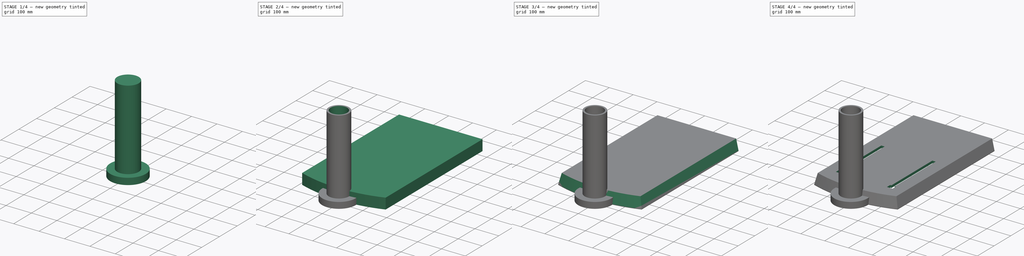
[diagram: build sequence overview — one tinted view per stage of 4, left to right]
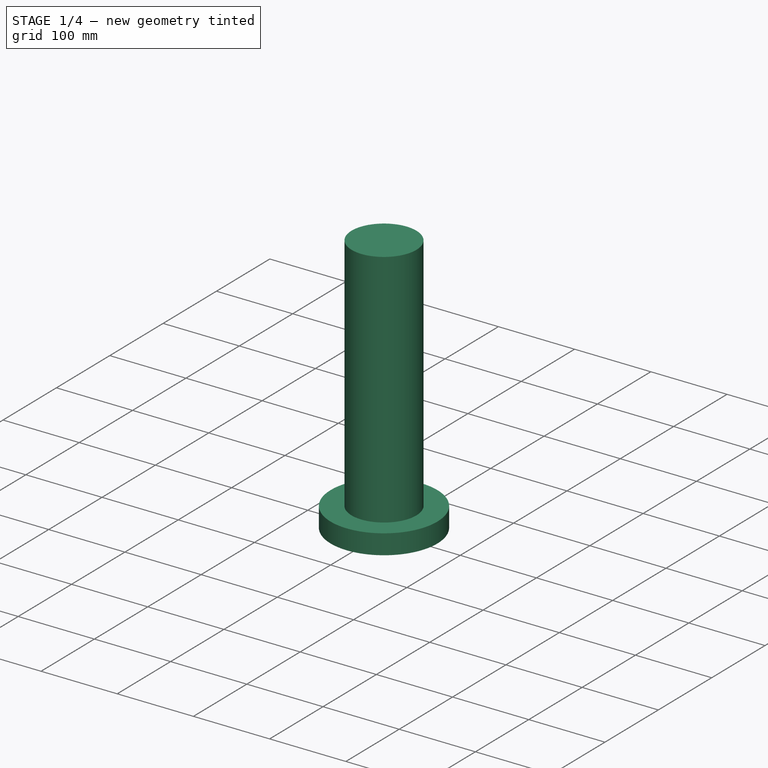
[diagram: stage 1 of 4 — iso view after this stage's code; geometry added in this stage tinted green]
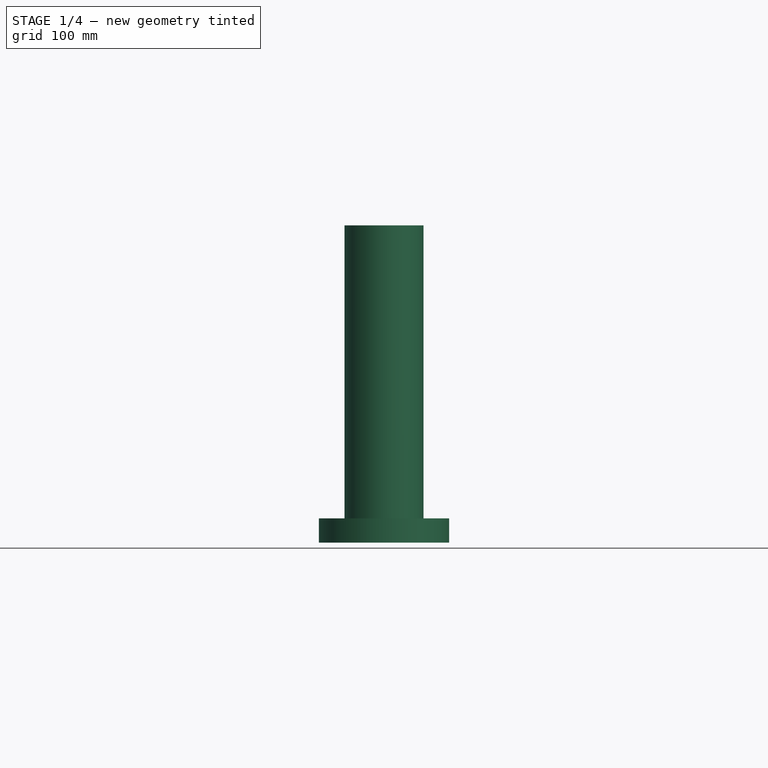
[diagram: stage 1 of 4 — front view after this stage's code; geometry added in this stage tinted green]
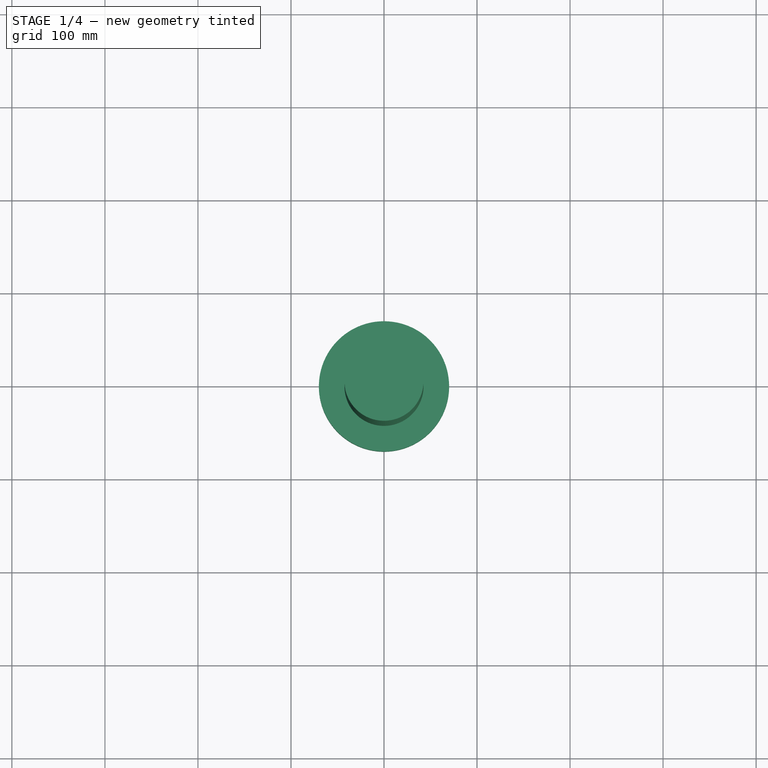
[diagram: stage 1 of 4 — top view after this stage's code; geometry added in this stage tinted green]
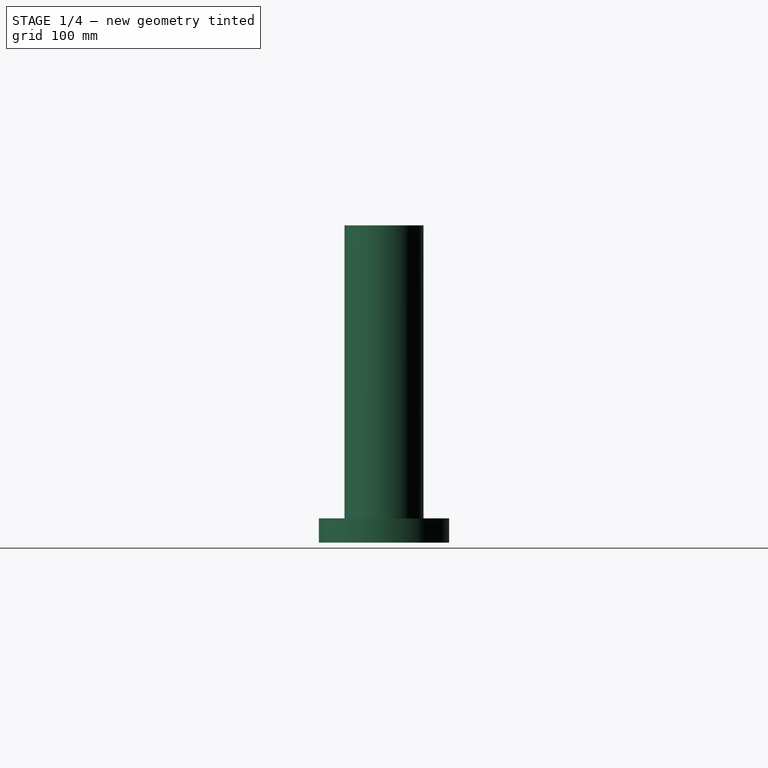
[diagram: stage 1 of 4 — right view after this stage's code; geometry added in this stage tinted green]
FCSTD DOCUMENT  (FreeCAD 0.22R35466 (Git))
Label: drill_press
License: All rights reserved
LicenseURL: http://en.wikipedia.org/wiki/All_rights_reserved
objects: Sketcher::SketchObject×6, PartDesign::Pad×3, PartDesign::Pocket×3, PartDesign::Chamfer×2, PartDesign::Body×2, Spreadsheet::Sheet×1, PartDesign::Mirrored×1, App::Part×1
note: 25 computed .brp shape members not serialized (recipe doc carries the construction recipe); baked Part::Feature solids carry a one-line shape summary decoded from their .brp

FEATURE [PartDesign::Body] Body  label="base_plate"
  Group = -> [Sketch,Pad,Chamfer,Sketch001,Pocket,Chamfer001,Sketch002,Pocket001,Mirrored]
  Origin = -> Origin
  Tip = -> Mirrored
FEATURE [Sketcher::SketchObject] Sketch003
  FullyConstrained = true
  MapMode = 5
  Support = -> [XY_Plane002]
  sketch-geometry (1):
    g0: Circle CenterX=0 CenterY=0 CenterZ=0 NormalX=0 NormalY=0 NormalZ=1 AngleXU=0 Radius=70
  constraints (2):
    c: Coincident(g0,g-1)
    c: Diameter(g0) = 140
FEATURE [PartDesign::Pad] Pad001
  Direction = (0,0,1)
  Length = 26
  Length2 = 10
  Profile = -> Sketch003
  ReferenceAxis = -> Sketch003 [N_Axis]
  Type = 0
FEATURE [Sketcher::SketchObject] Sketch004
  FullyConstrained = true
  MapMode = 5
  Placement = pos=(0,0,26) rot=(0,0,1;0rad)
  Support = -> [Pad001]
  sketch-geometry (1):
    g0: Circle CenterX=0 CenterY=0 CenterZ=0 NormalX=0 NormalY=0 NormalZ=1 AngleXU=0 Radius=42.5
  constraints (2):
    c: Coincident(g0,g-1)
    c: Diameter(g0) = 85
FEATURE [PartDesign::Pad] Pad002
  BaseFeature = -> Pad001
  Direction = (0,0,1)
  Length = 315
  Length2 = 10
  Profile = -> Sketch004
  ReferenceAxis = -> Sketch004 [N_Axis]
  Type = 0
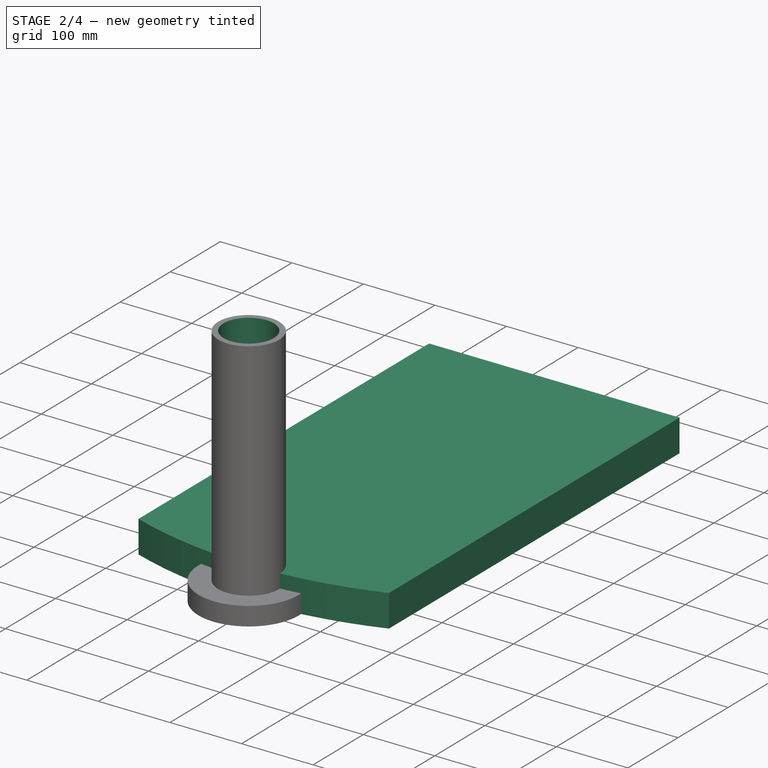
[diagram: stage 2 of 4 — iso view after this stage's code; geometry added in this stage tinted green]
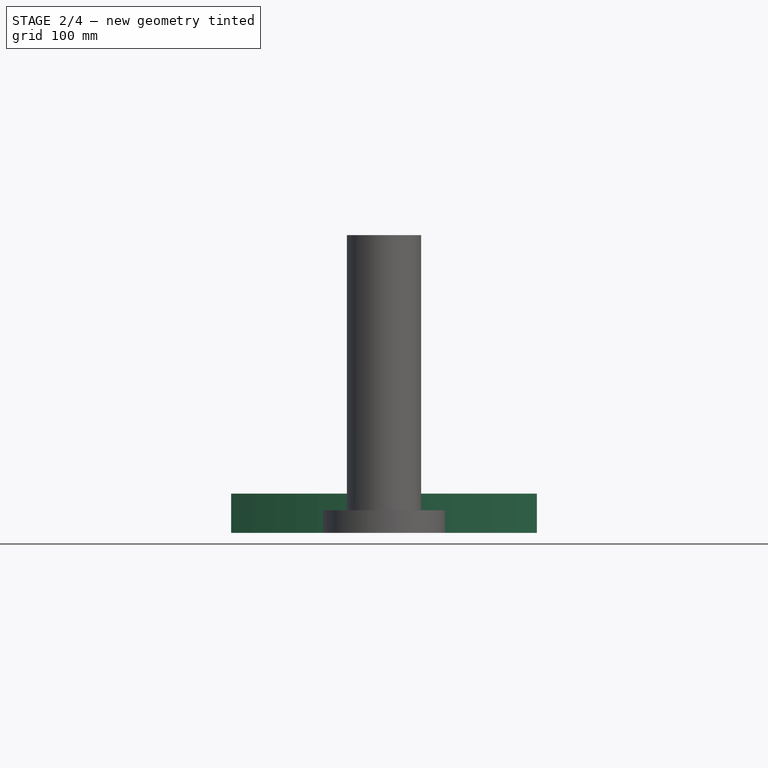
[diagram: stage 2 of 4 — front view after this stage's code; geometry added in this stage tinted green]
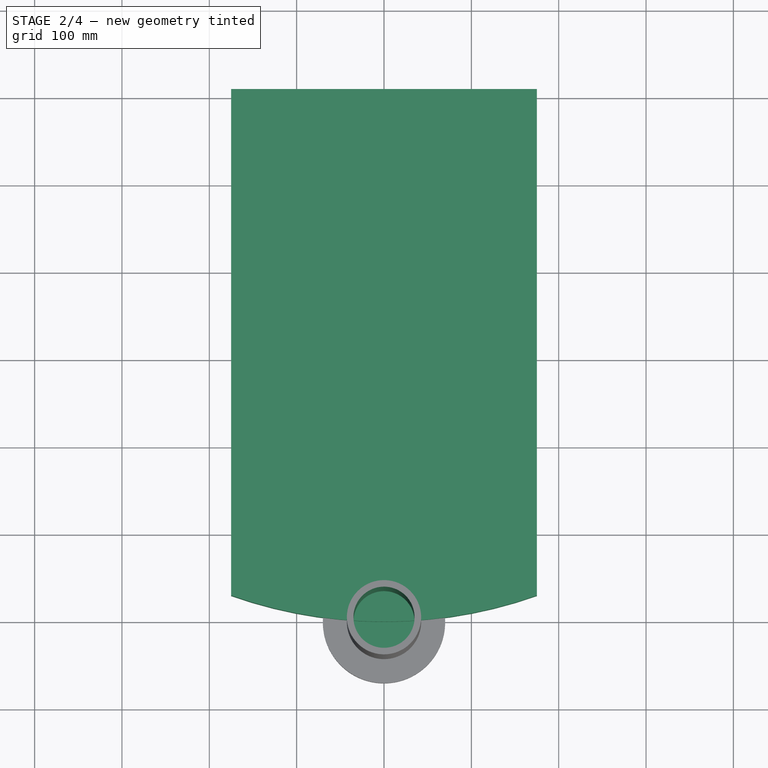
[diagram: stage 2 of 4 — top view after this stage's code; geometry added in this stage tinted green]
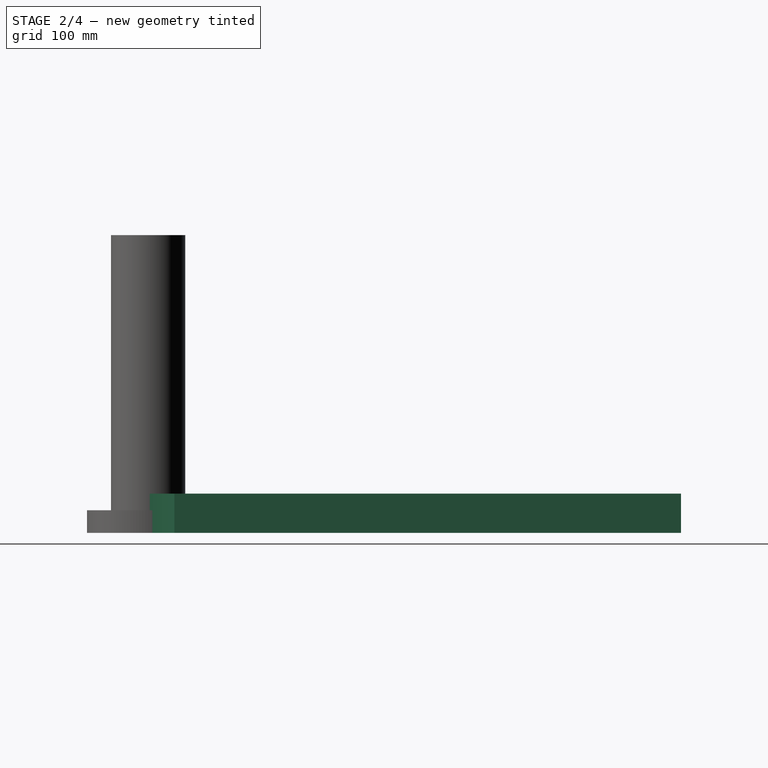
[diagram: stage 2 of 4 — right view after this stage's code; geometry added in this stage tinted green]
FEATURE [Sketcher::SketchObject] Sketch
  FullyConstrained = true
  MapMode = 5
  Support = -> [XY_Plane]
  expr: Constraints[5] = Spreadsheet.drill_press_iron_base_width
  sketch-geometry (5):
    g0: LineSegment StartX=-175 StartY=610 StartZ=0 EndX=-175 EndY=30 EndZ=0
    g1: LineSegment StartX=175 StartY=30 StartZ=0 EndX=175 EndY=610 EndZ=0
    g2: LineSegment StartX=175 StartY=610 StartZ=0 EndX=-175 EndY=610 EndZ=0
    g3: LineSegment StartX=-175 StartY=30 StartZ=0 EndX=175 EndY=30 EndZ=0
    g4: ArcOfCircle CenterX=-1.3917e-11 CenterY=525.417 CenterZ=0 NormalX=0 NormalY=0 NormalZ=1 AngleXU=0 Radius=525.417 StartAngle=4.37283 EndAngle=5.05195
  constraints (16):
    c: Coincident(g1,g2)
    c: Coincident(g2,g0)
    c: Vertical(g0)
    c: Vertical(g1)
    c: Horizontal(g2)
    c: DistanceX(g2,g2) = 350
    c: PointOnObject(g3,g0)
    c: Horizontal(g3)
    c: Coincident(g4,g3)
    c: Coincident(g4,g3)
    c: PointOnObject(g-1,g4)
    c: PointOnObject(g0,g4)
    c: Coincident(g1,g3)
    c: DistanceY(g-1,g0) = 610
    c: DistanceY(g-1,g0) = 30
    c: DistanceX(g0,g-1) = 175
FEATURE [Spreadsheet::Sheet] Spreadsheet
  cells = A1='drill_press_iron_base_width; B1(drill_press_iron_base_width)==350 mm; A2='drill_press_iron_base_depth; B2(drill_press_iron_base_depth)==610 mm; A3='drill_press_iron_base_height; B3(drill_press_iron_base_height)==75 mm; A4='drill_pres_base_cylinder_offset; B4(drill_pres_base_cylinder_offset)==B2 - 165 mm
FEATURE [PartDesign::Pad] Pad
  Direction = (0,0,1)
  Length = 45
  Length2 = 10
  Profile = -> Sketch
  ReferenceAxis = -> Sketch [N_Axis]
  Type = 0
FEATURE [Sketcher::SketchObject] Sketch005
  FullyConstrained = true
  MapMode = 5
  Placement = pos=(0,0,341) rot=(0,0,1;0rad)
  Support = -> [Pad002]
  sketch-geometry (1):
    g0: Circle CenterX=0 CenterY=0 CenterZ=0 NormalX=0 NormalY=0 NormalZ=1 AngleXU=0 Radius=35
  constraints (2):
    c: Coincident(g0,g-1)
    c: Diameter(g0) = 70
FEATURE [PartDesign::Pocket] Pocket002
  BaseFeature = -> Pad002
  Direction = (0,0,-1)
  Length = 315
  Length2 = 5
  Profile = -> Sketch005
  ReferenceAxis = -> Sketch005 [N_Axis]
  Type = 0
FEATURE [PartDesign::Body] Body001  label="base_cylinder"
  Group = -> [Sketch003,Pad001,Sketch004,Pad002,Sketch005,Pocket002]
  Origin = -> Origin002
  Placement = pos=(0,445,45) rot=(0,0,1;0rad)
  Tip = -> Pocket002
  expr: .Placement.Base.y = Spreadsheet.drill_pres_base_cylinder_offset
FEATURE [App::Part] Part  label="base"
  Group = -> [Body,Body001]
  Origin = -> Origin001
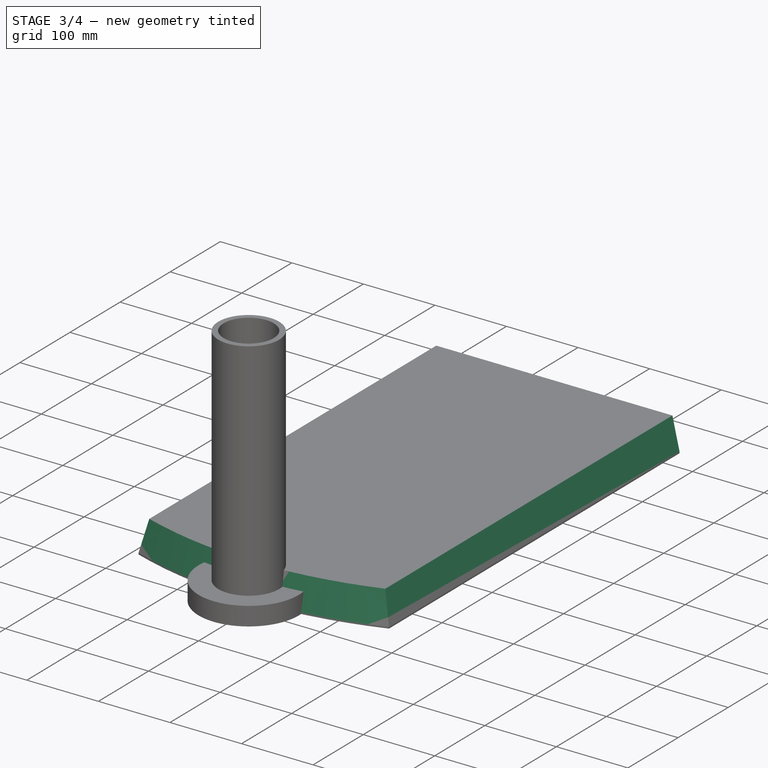
[diagram: stage 3 of 4 — iso view after this stage's code; geometry added in this stage tinted green]
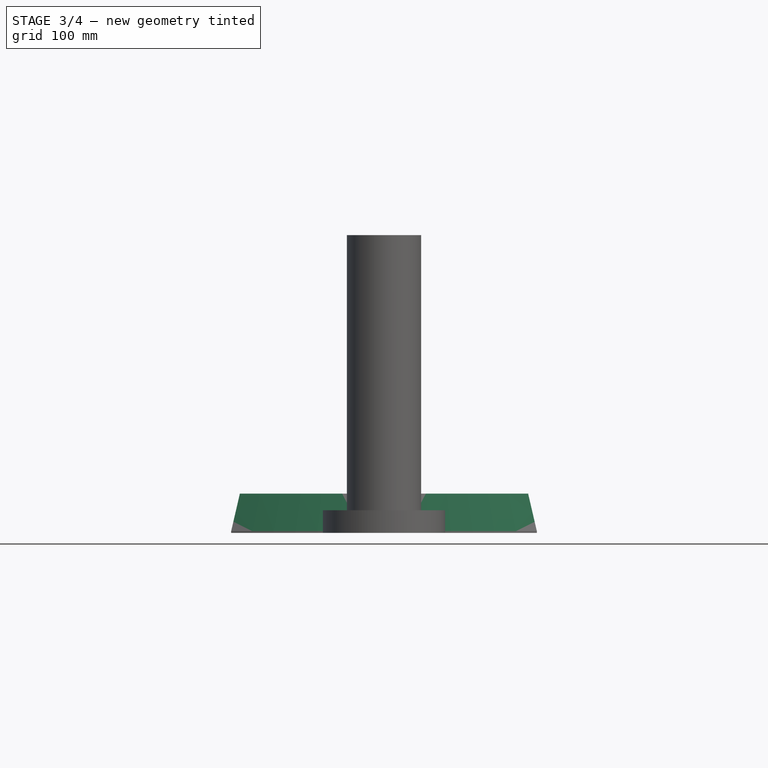
[diagram: stage 3 of 4 — front view after this stage's code; geometry added in this stage tinted green]
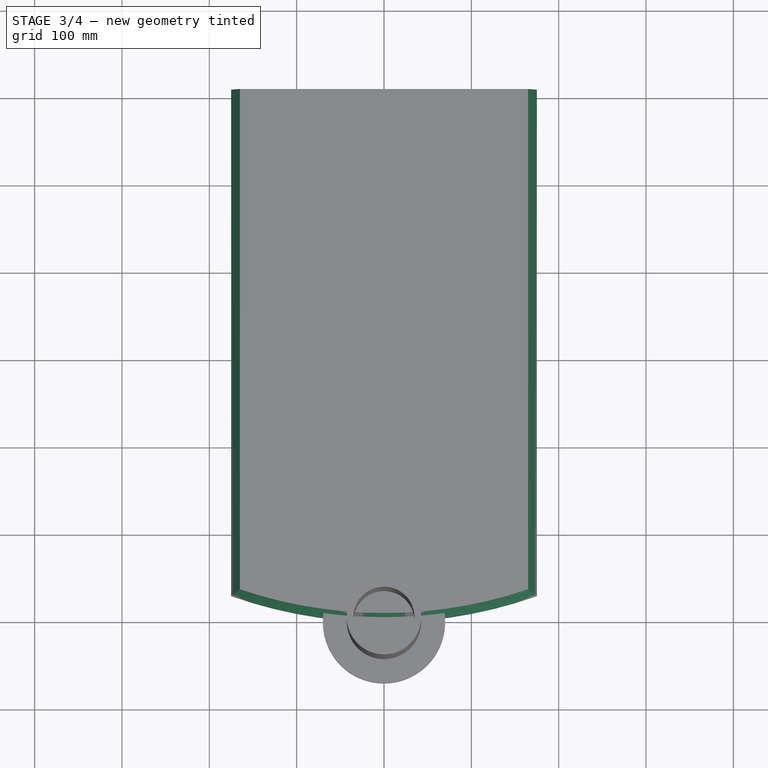
[diagram: stage 3 of 4 — top view after this stage's code; geometry added in this stage tinted green]
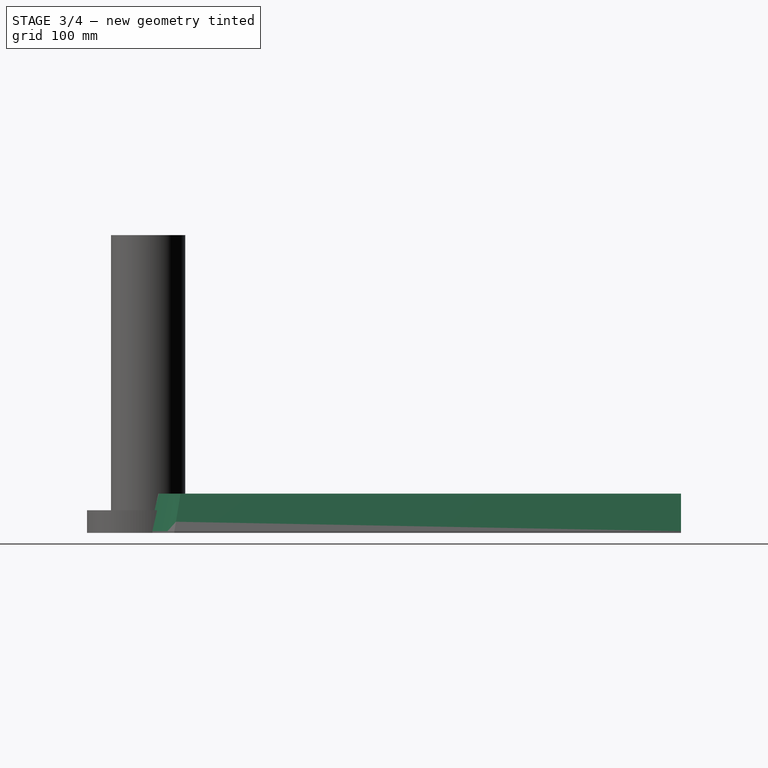
[diagram: stage 3 of 4 — right view after this stage's code; geometry added in this stage tinted green]
FEATURE [PartDesign::Chamfer] Chamfer
  Angle = 45
  Base = -> Pad [Edge7,Edge10,Edge4]
  BaseFeature = -> Pad
  ChamferType = 1
  FlipDirection = false
  Size = 43
  Size2 = 10
  SupportTransform = false
  UseAllEdges = false
FEATURE [Sketcher::SketchObject] Sketch001
  ExternalGeometry = -> [Chamfer]
  FullyConstrained = false
  MapMode = 5
  Placement = pos=(0,0,0) rot=(1,0,0;3.14159rad)
  Support = -> [Chamfer]
  expr: Constraints[5] = Spreadsheet.drill_press_iron_base_width - 30 mm
  sketch-geometry (4):
    g0: LineSegment StartX=-160 StartY=-595 StartZ=0 EndX=160 EndY=-595 EndZ=0
    g1: LineSegment StartX=160 StartY=-595 StartZ=0 EndX=160 EndY=-45 EndZ=0
    g2: LineSegment StartX=-160 StartY=-45 StartZ=0 EndX=-160 EndY=-595 EndZ=0
    g3: ArcOfCircle CenterX=1.60726e-11 CenterY=-456.667 CenterZ=0 NormalX=0 NormalY=0 NormalZ=1 AngleXU=0 Radius=441.667 StartAngle=1.2001 EndAngle=1.94149
  constraints (11):
    c: Coincident(g0,g1)
    c: Coincident(g2,g0)
    c: Horizontal(g0)
    c: Vertical(g1)
    c: Vertical(g2)
    c: DistanceX(g0,g0) = 320
    c: DistanceY(g-3,g0) = 15
    c: DistanceY(g2,g-4) = 15
    c: DistanceX(g-4,g2) = 15
    c: Coincident(g3,g1)
    c: DistanceY(g1,g-1) = 45
FEATURE [PartDesign::Pocket] Pocket
  BaseFeature = -> Chamfer
  Direction = (0,0,1)
  Length = 35
  Length2 = 5
  Profile = -> Sketch001
  ReferenceAxis = -> Sketch001 [N_Axis]
  Type = 0
FEATURE [PartDesign::Chamfer] Chamfer001
  Angle = 45
  Base = -> Pocket [Edge30,Edge26,Edge28]
  BaseFeature = -> Pocket
  ChamferType = 1
  FlipDirection = false
  Size = 33
  Size2 = 10
  SupportTransform = false
  UseAllEdges = false
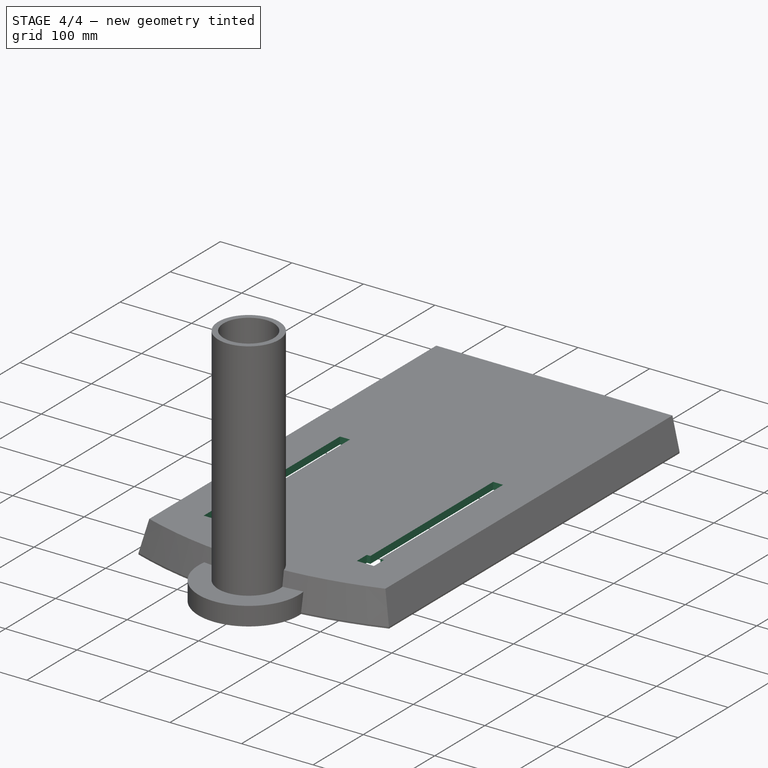
[diagram: stage 4 of 4 — iso view after this stage's code; geometry added in this stage tinted green]
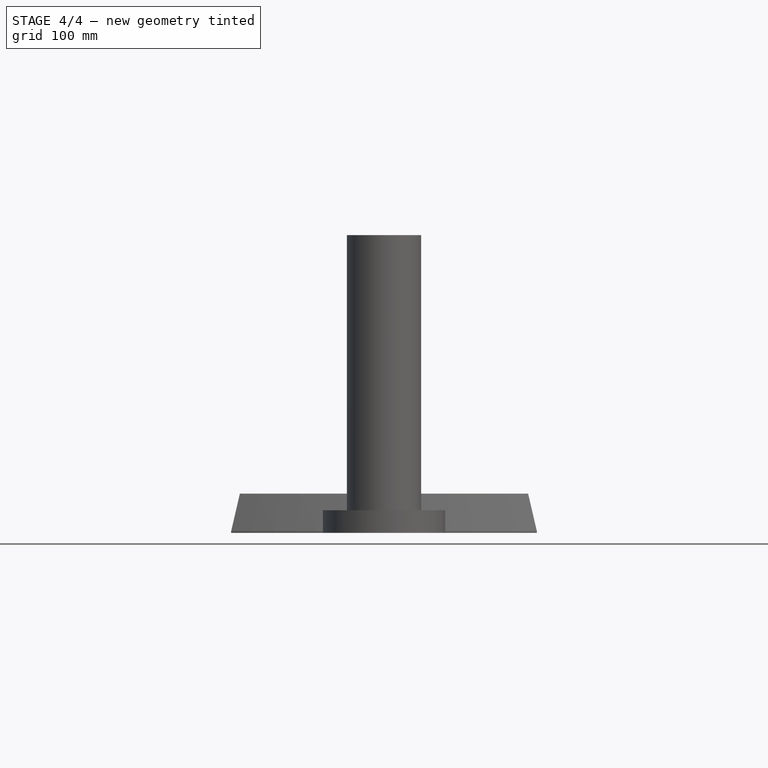
[diagram: stage 4 of 4 — front view after this stage's code; geometry added in this stage tinted green]
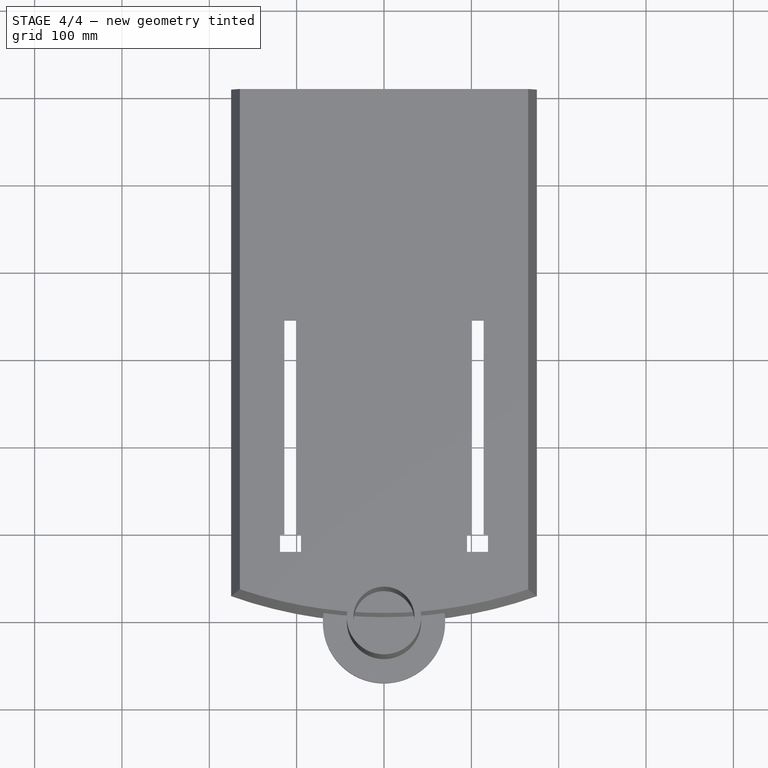
[diagram: stage 4 of 4 — top view after this stage's code; geometry added in this stage tinted green]
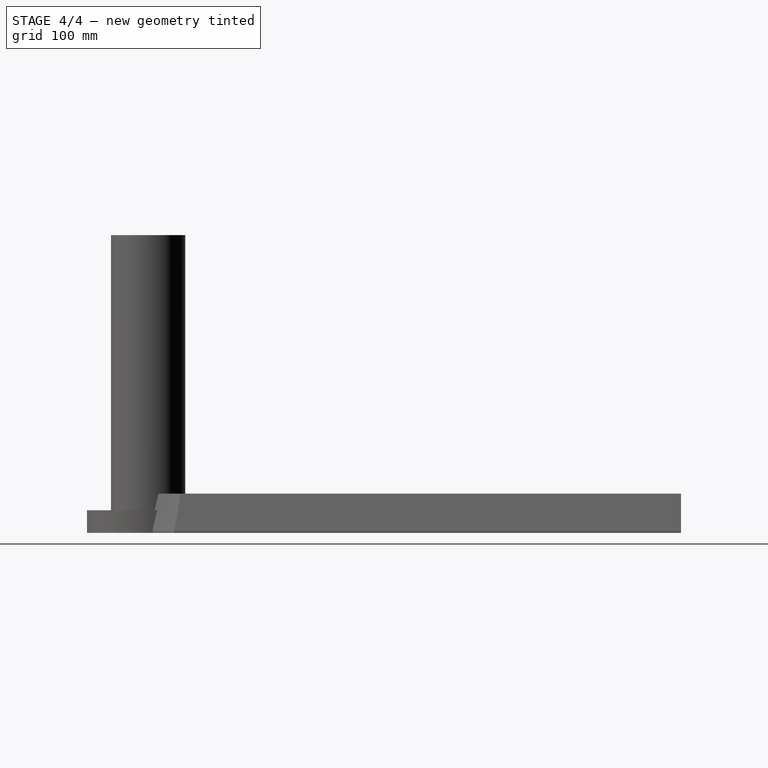
[diagram: stage 4 of 4 — right view after this stage's code; geometry added in this stage tinted green]
FEATURE [Sketcher::SketchObject] Sketch002
  FullyConstrained = true
  MapMode = 5
  Placement = pos=(0,0,45) rot=(0,0,1;0rad)
  Support = -> [Chamfer001]
  expr: Constraints[22] = 190 / 2
  sketch-geometry (8):
    g0: LineSegment StartX=-119 StartY=100 StartZ=0 EndX=-119 EndY=80 EndZ=0
    g1: LineSegment StartX=-119 StartY=80 StartZ=0 EndX=-95 EndY=80 EndZ=0
    g2: LineSegment StartX=-95 StartY=80 StartZ=0 EndX=-95 EndY=100 EndZ=0
    g3: LineSegment StartX=-95 StartY=100 StartZ=0 EndX=-100 EndY=100 EndZ=0
    g4: LineSegment StartX=-114 StartY=345 StartZ=0 EndX=-114 EndY=100 EndZ=0
    g5: LineSegment StartX=-100 StartY=100 StartZ=0 EndX=-100 EndY=345 EndZ=0
    g6: LineSegment StartX=-100 StartY=345 StartZ=0 EndX=-114 EndY=345 EndZ=0
    g7: LineSegment StartX=-114 StartY=100 StartZ=0 EndX=-119 EndY=100 EndZ=0
  constraints (24):
    c: Coincident(g0,g1)
    c: Coincident(g1,g2)
    c: Coincident(g2,g3)
    c: Coincident(g7,g0)
    c: Vertical(g0)
    c: Vertical(g2)
    c: Horizontal(g1)
    c: Horizontal(g3)
    c: DistanceY(g0,g0) = 20
    c: DistanceX(g1,g1) = 24
    c: Coincident(g5,g6)
    c: Coincident(g6,g4)
    c: Vertical(g4)
    c: Vertical(g5)
    c: Horizontal(g6)
    c: Coincident(g4,g7)
    c: Coincident(g5,g3)
    c: DistanceX(g3,g2) = 5
    c: DistanceX(g6,g6) = 14
    c: DistanceY(g1,g5) = 265
    c: Equal(g2,g0)
    c: Perpendicular(g0,g7)
    c: DistanceX(g1,g-1) = 95
    c: DistanceY(g-1,g1) = 80
FEATURE [PartDesign::Pocket] Pocket001
  BaseFeature = -> Chamfer001
  Direction = (0,0,-1)
  Length = 20
  Length2 = 5
  Profile = -> Sketch002
  ReferenceAxis = -> Sketch002 [N_Axis]
  Type = 0
FEATURE [PartDesign::Mirrored] Mirrored
  BaseFeature = -> Pocket001
  MirrorPlane = -> Sketch002 [V_Axis]
  Originals = -> [Pocket001]
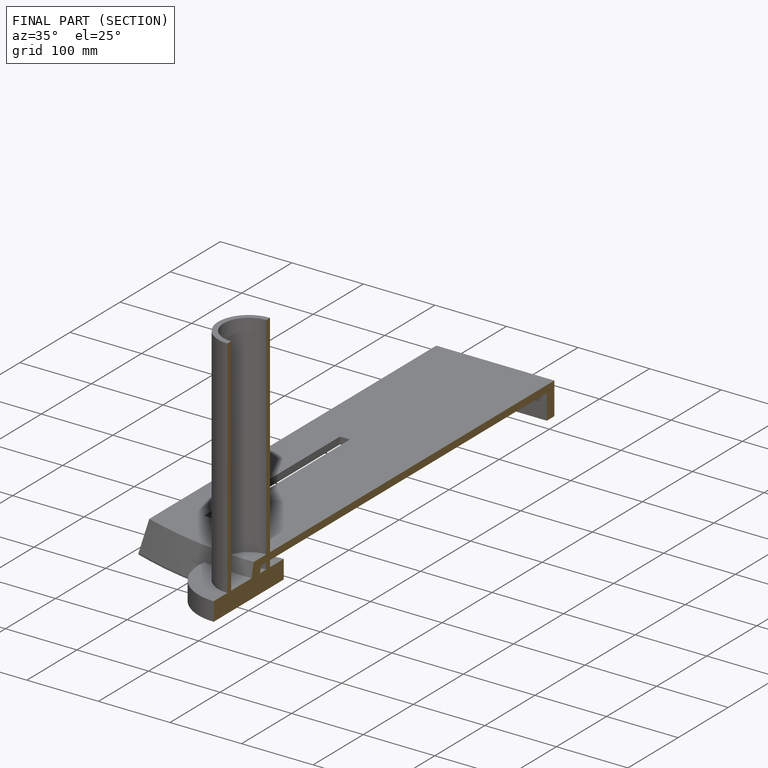
[diagram: finished part — half-section view (interior)]
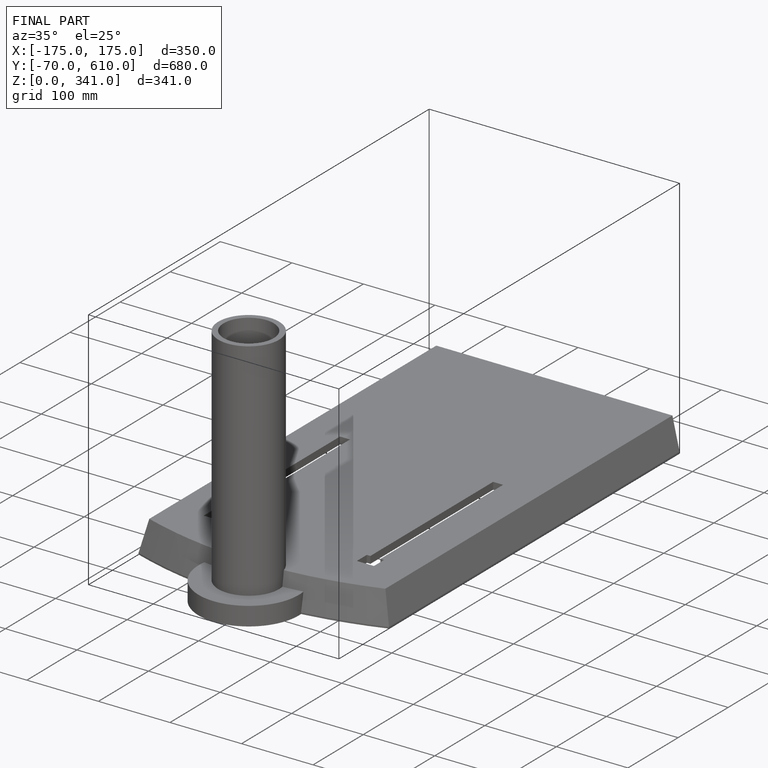
[diagram: finished part — iso view with bounding-box wireframe]
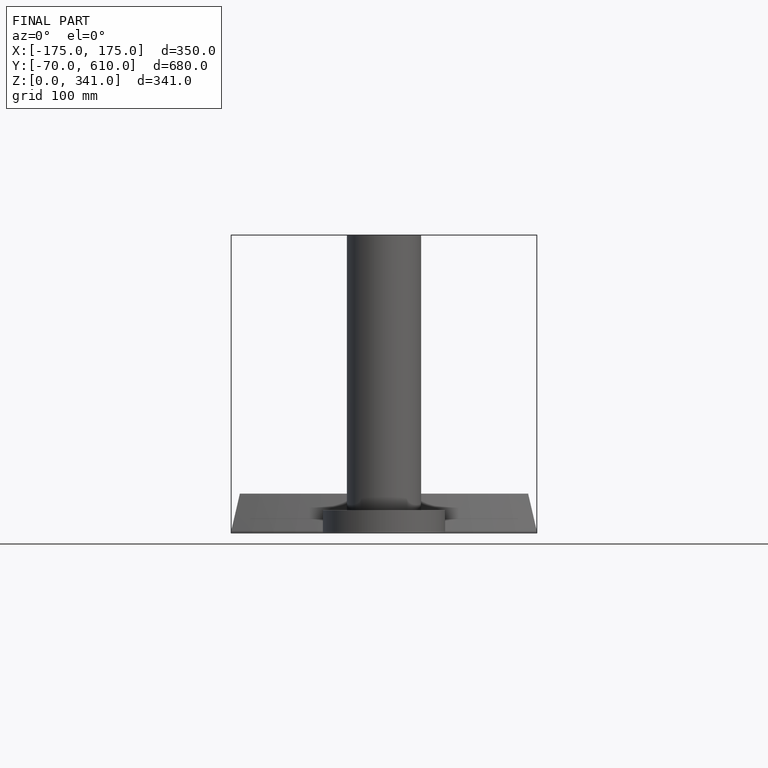
[diagram: finished part — front view with bounding-box wireframe]
